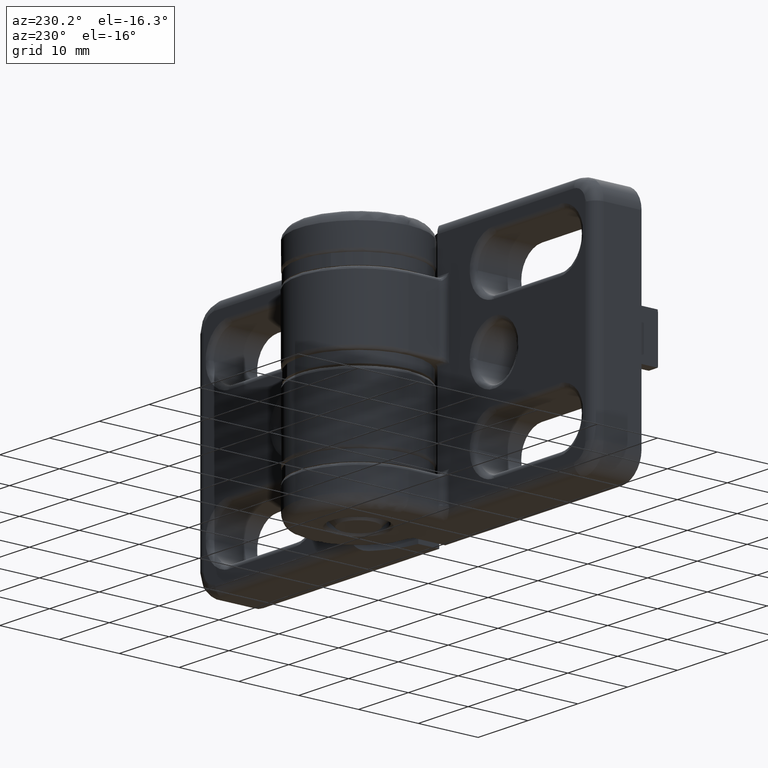
[diagram: clean part render]
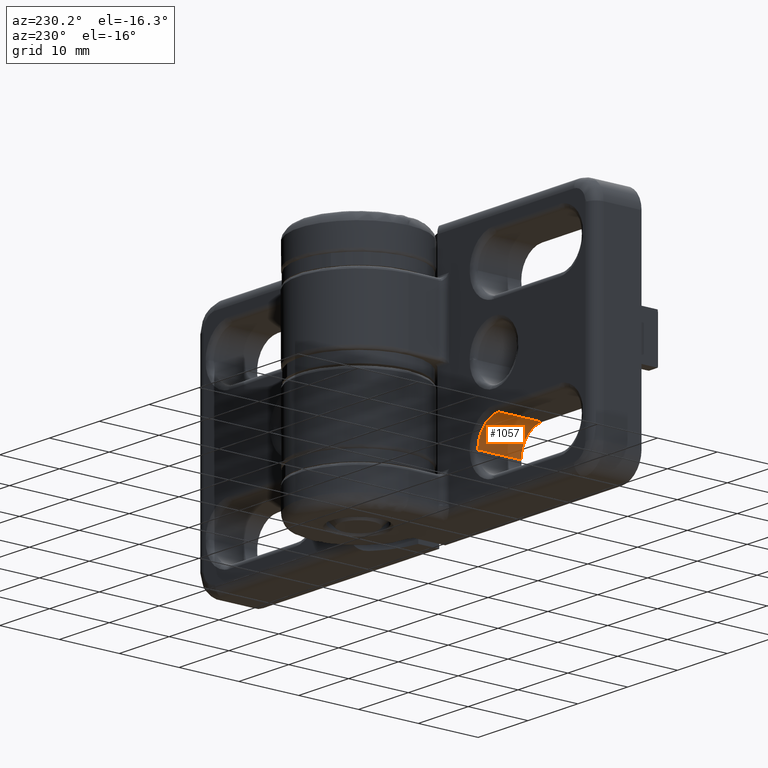
[diagram: same view with one face highlighted and labeled with its STEP entity id]
A machine part, auxiliary view. The second image highlights one B-rep face of the part: STEP entity #1057.
In plain terms, the highlighted cylindrical surface (edge-blend (fillet) strip) has radius 4.15 mm, axis along (0, -1, 0).
Its self-contained STEP definition (entity closure, byte-faithful):
#79 = FACE_OUTER_BOUND ( 'NONE', #4009, .T. ) ;
#171 = CARTESIAN_POINT ( 'NONE',  ( -20.00000000000000000, -14.00000000000000200, -27.85000000000000100 ) ) ;
#537 = CYLINDRICAL_SURFACE ( 'NONE', #4153, 4.150000000000001200 ) ;
#587 = CARTESIAN_POINT ( 'NONE',  ( -15.85000000000000000, -14.00000000000000400, -32.00000000000000000 ) ) ;
#591 = DIRECTION ( 'NONE',  ( 1.000000000000000000, 2.090028284309405500E-016, 0.0000000000000000000 ) ) ;
#663 = AXIS2_PLACEMENT_3D ( 'NONE', #3411, #1665, #5622 ) ;
#861 = VECTOR ( 'NONE', #3742, 1000.000000000000000 ) ;
#964 = VERTEX_POINT ( 'NONE', #1899 ) ;
#1057 = ADVANCED_FACE ( 'NONE', ( #79 ), #537, .F. ) ;
#1410 = ORIENTED_EDGE ( 'NONE', *, *, #4907, .F. ) ;
#1432 = VERTEX_POINT ( 'NONE', #587 ) ;
#1577 = DIRECTION ( 'NONE',  ( 1.320855438561020700E-016, -1.000000000000000000, -0.0000000000000000000 ) ) ;
#1656 = CARTESIAN_POINT ( 'NONE',  ( -15.85000000000000000, -5.999999999999995600, -32.00000000000000000 ) ) ;
#1665 = DIRECTION ( 'NONE',  ( -1.320855438561020700E-016, 1.000000000000000000, 0.0000000000000000000 ) ) ;
#1821 = ORIENTED_EDGE ( 'NONE', *, *, #5122, .F. ) ;
#1899 = CARTESIAN_POINT ( 'NONE',  ( -15.85000000000000000, -6.750000000000001800, -32.00000000000000000 ) ) ;
#2018 = CIRCLE ( 'NONE', #663, 4.150000000000001200 ) ;
#2201 = LINE ( 'NONE', #3721, #861 ) ;
#2204 = VECTOR ( 'NONE', #5179, 1000.000000000000000 ) ;
#2241 = VERTEX_POINT ( 'NONE', #3657 ) ;
#2823 = AXIS2_PLACEMENT_3D ( 'NONE', #3174, #3266, #591 ) ;
#3174 = CARTESIAN_POINT ( 'NONE',  ( -20.00000000000000000, -6.750000000000002700, -32.00000000000000000 ) ) ;
#3266 = DIRECTION ( 'NONE',  ( 1.320855438561020700E-016, -1.000000000000000000, -0.0000000000000000000 ) ) ;
#3411 = CARTESIAN_POINT ( 'NONE',  ( -20.00000000000000000, -14.00000000000000400, -32.00000000000000000 ) ) ;
#3427 = ORIENTED_EDGE ( 'NONE', *, *, #4581, .T. ) ;
#3644 = CIRCLE ( 'NONE', #2823, 4.150000000000001200 ) ;
#3657 = CARTESIAN_POINT ( 'NONE',  ( -20.00000000000000000, -6.750000000000002700, -27.85000000000000100 ) ) ;
#3721 = CARTESIAN_POINT ( 'NONE',  ( -20.00000000000000000, -5.999999999999996400, -27.85000000000000100 ) ) ;
#3742 = DIRECTION ( 'NONE',  ( 1.320855438561020700E-016, -1.000000000000000000, -0.0000000000000000000 ) ) ;
#3755 = DIRECTION ( 'NONE',  ( 1.000000000000000000, 2.090028284309405500E-016, 0.0000000000000000000 ) ) ;
#4009 = EDGE_LOOP ( 'NONE', ( #4927, #3427, #1821, #1410 ) ) ;
#4153 = AXIS2_PLACEMENT_3D ( 'NONE', #5453, #1577, #3755 ) ;
#4211 = EDGE_CURVE ( 'NONE', #964, #2241, #3644, .T. ) ;
#4581 = EDGE_CURVE ( 'NONE', #964, #1432, #4972, .T. ) ;
#4907 = EDGE_CURVE ( 'NONE', #2241, #5022, #2201, .T. ) ;
#4927 = ORIENTED_EDGE ( 'NONE', *, *, #4211, .F. ) ;
#4972 = LINE ( 'NONE', #1656, #2204 ) ;
#5022 = VERTEX_POINT ( 'NONE', #171 ) ;
#5122 = EDGE_CURVE ( 'NONE', #5022, #1432, #2018, .T. ) ;
#5179 = DIRECTION ( 'NONE',  ( 1.320855438561020700E-016, -1.000000000000000000, -0.0000000000000000000 ) ) ;
#5453 = CARTESIAN_POINT ( 'NONE',  ( -20.00000000000000000, -5.999999999999996400, -32.00000000000000000 ) ) ;
#5622 = DIRECTION ( 'NONE',  ( 1.000000000000000000, 0.0000000000000000000, 0.0000000000000000000 ) ) ;